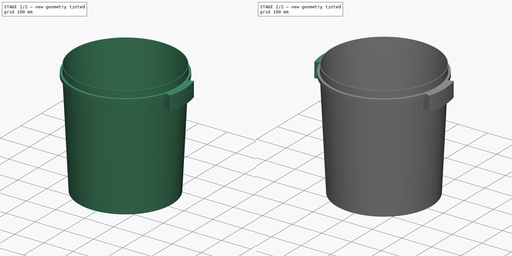
[diagram: build sequence overview — one tinted view per stage of 2, left to right]
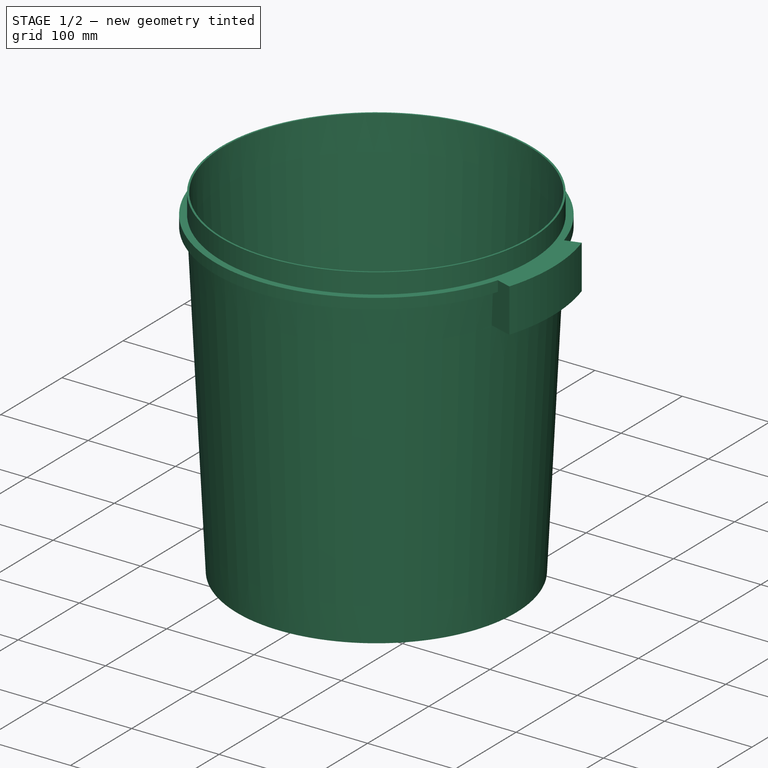
[diagram: stage 1 of 2 — iso view after this stage's code; geometry added in this stage tinted green]
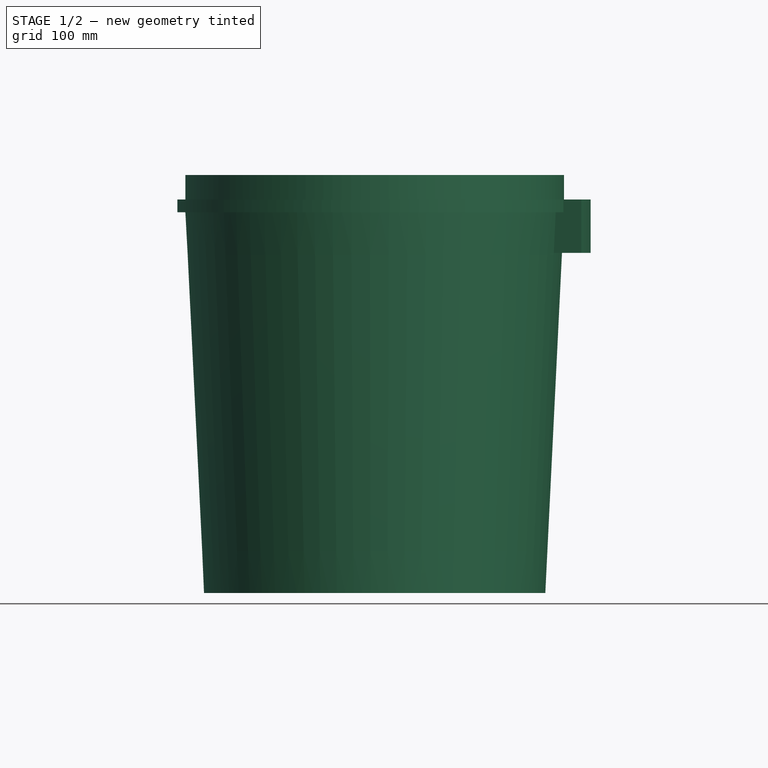
[diagram: stage 1 of 2 — front view after this stage's code; geometry added in this stage tinted green]
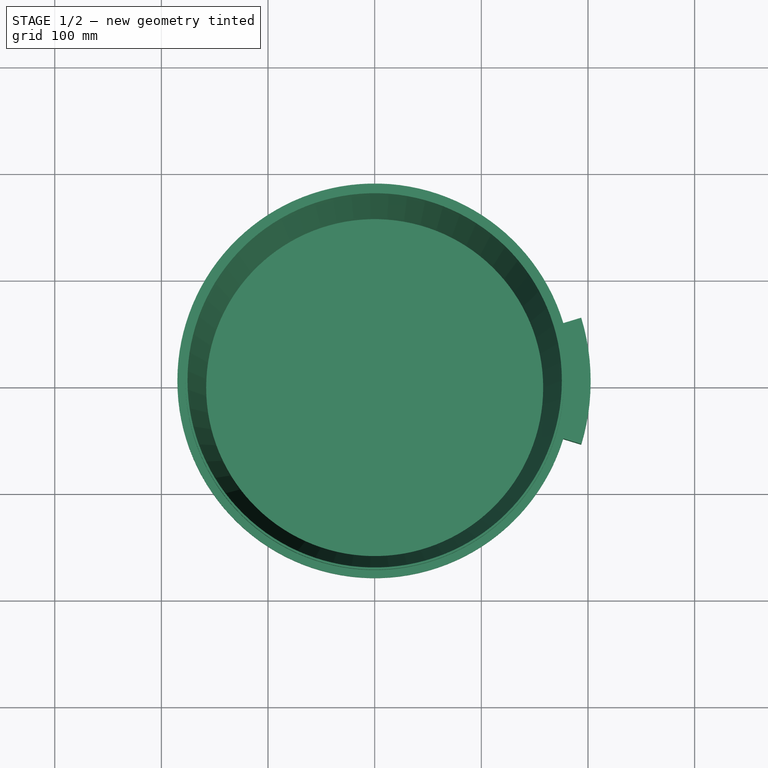
[diagram: stage 1 of 2 — top view after this stage's code; geometry added in this stage tinted green]
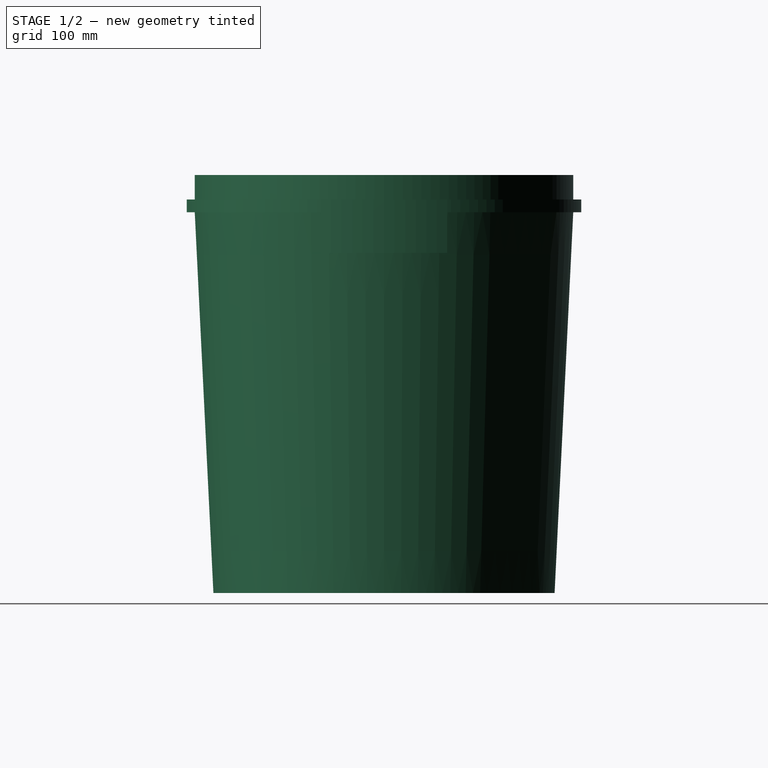
[diagram: stage 1 of 2 — right view after this stage's code; geometry added in this stage tinted green]
FCSTD DOCUMENT  (FreeCAD 1.1R38827 (Git))
Label: basin_big
License: All rights reserved
LicenseURL: http://en.wikipedia.org/wiki/All_rights_reserved
objects: Part::FeaturePython×4, Sketcher::SketchObject×2, PartDesign::Revolution×2, App::AnnotationLabel×2, PartDesign::Mirrored×1, PartDesign::CoordinateSystem×1, PartDesign::Body×1, Spreadsheet::Sheet×1, App::DocumentObjectGroup×1
note: 18 computed .brp shape members not serialized (recipe doc carries the construction recipe); baked Part::Feature solids carry a one-line shape summary decoded from their .brp

FEATURE [Sketcher::SketchObject] Sketch067  label="basin_sketch"
  ArcFitTolerance = 0
  AttachmentSupport = -> [XZ_Plane034]
  FullyConstrained = true
  MakeInternals = false
  MapMode = 5
  Placement = pos=(0,0,0) rot=(1,0,0;1.5708rad)
  sketch-geometry (10):
    g0: LineSegment StartX=0 StartY=0 StartZ=0 EndX=160 EndY=0 EndZ=0
    g1: LineSegment StartX=160 StartY=0 StartZ=0 EndX=177.5 EndY=357 EndZ=0
    g2: LineSegment StartX=177.5 StartY=357 StartZ=0 EndX=185 EndY=357 EndZ=0
    g3: LineSegment StartX=185 StartY=357 StartZ=0 EndX=185 EndY=369 EndZ=0
    g4: LineSegment StartX=185 StartY=369 StartZ=0 EndX=177.5 EndY=369 EndZ=0
    g5: LineSegment StartX=177.5 StartY=369 StartZ=0 EndX=177.5 EndY=392 EndZ=0
    g6: LineSegment StartX=177.5 StartY=392 StartZ=0 EndX=175.5 EndY=392 EndZ=0
    g7: LineSegment StartX=0 StartY=2 StartZ=0 EndX=0 EndY=0 EndZ=0
    g8: LineSegment StartX=175.5 StartY=392 StartZ=0 EndX=158 EndY=2 EndZ=0
    g9: LineSegment StartX=158 StartY=2 StartZ=0 EndX=0 EndY=2 EndZ=0
  constraints (29):
    c: Coincident(g-1,g0)
    c: PointOnObject(g0,g-1)
    c: Coincident(g0,g1)
    c: Coincident(g1,g2)
    c: Horizontal(g2)
    c: Coincident(g2,g3)
    c: Vertical(g3)
    c: Coincident(g3,g4)
    c: Horizontal(g4)
    c: Coincident(g4,g5)
    c: Coincident(g5,g6)
    c: Horizontal(g6)
    c: Coincident(g7,g0)
    c: DistanceX(g0) = 160  'basin_bottom_r'
    c: DistanceX(g1) = 177.5
    c: Vertical(g4,g1)
    c: Vertical(g5,g4)
    c: DistanceX(g2) = 185
    c: DistanceY(g1) = 357
    c: DistanceY(g2,g3) = 12
    c: Coincident(g9,g8)
    c: Horizontal(g9)
    c: DistanceY(g0,g9) = 2
    c: DistanceX(g8,g0) = 2
    c: DistanceX(g8,g5) = 2
    c: Coincident(g6,g8)
    c: DistanceY(g6) = 392
    c: Coincident(g7,g9)
    c: Vertical(g7)
FEATURE [Sketcher::SketchObject] Sketch068
  ArcFitTolerance = 0
  AttachmentSupport = -> [XZ_Plane034]
  FullyConstrained = true
  MakeInternals = false
  MapMode = 5
  Placement = pos=(0,0,0) rot=(1,0,0;1.5708rad)
  expr: Constraints[13] = Sketch067.Constraints.basin_bottom_r
  expr: Constraints[14] = Sketch067.Constraints[14]
  expr: Constraints[17] = Sketch067.Constraints[17]
  expr: Constraints[18] = Sketch067.Constraints[18]
  expr: Constraints[19] = Sketch067.Constraints[19]
  expr: Constraints[22] = Sketch067.Constraints[22]
  expr: Constraints[23] = Sketch067.Constraints[23]
  expr: Constraints[24] = Sketch067.Constraints[24]
  expr: Constraints[26] = Sketch067.Constraints[26]
  sketch-geometry (14):
    g0: LineSegment [constr] StartX=0 StartY=0 StartZ=0 EndX=160 EndY=0 EndZ=0
    g1: LineSegment [constr] StartX=160 StartY=0 StartZ=0 EndX=177.5 EndY=357 EndZ=0
    g2: LineSegment StartX=177.5 StartY=357 StartZ=0 EndX=185 EndY=357 EndZ=0
    g3: LineSegment StartX=185 StartY=357 StartZ=0 EndX=185 EndY=369 EndZ=0
    g4: LineSegment [constr] StartX=185 StartY=369 StartZ=0 EndX=177.5 EndY=369 EndZ=0
    g5: LineSegment [constr] StartX=177.5 StartY=369 StartZ=0 EndX=177.5 EndY=392 EndZ=0
    g6: LineSegment [constr] StartX=177.5 StartY=392 StartZ=0 EndX=175.5 EndY=392 EndZ=0
    g7: LineSegment [constr] StartX=0 StartY=2 StartZ=0 EndX=0 EndY=0 EndZ=0
    g8: LineSegment [constr] StartX=175.5 StartY=392 StartZ=0 EndX=158 EndY=2 EndZ=0
    g9: LineSegment [constr] StartX=158 StartY=2 StartZ=0 EndX=0 EndY=2 EndZ=0
    g10: LineSegment StartX=185 StartY=369 StartZ=0 EndX=202.5 EndY=369 EndZ=0
    g11: LineSegment StartX=202.5 StartY=369 StartZ=0 EndX=202.5 EndY=319 EndZ=0
    g12: LineSegment StartX=202.5 StartY=319 StartZ=0 EndX=175.637 EndY=319 EndZ=0
    g13: LineSegment StartX=175.637 StartY=319 StartZ=0 EndX=177.5 EndY=357 EndZ=0
  constraints (40):
    c: Coincident(g-1,g0)
    c: PointOnObject(g0,g-1)
    c: Coincident(g0,g1)
    c: Coincident(g1,g2)
    c: Horizontal(g2)
    c: Coincident(g2,g3)
    c: Vertical(g3)
    c: Coincident(g3,g4)
    c: Horizontal(g4)
    c: Coincident(g4,g5)
    c: Coincident(g5,g6)
    c: Horizontal(g6)
    c: Coincident(g7,g0)
    c: DistanceX(g0) = 160
    c: DistanceX(g1) = 177.5
    c: Vertical(g4,g1)
    c: Vertical(g5,g4)
    c: DistanceX(g2) = 185
    c: DistanceY(g1) = 357
    c: DistanceY(g2,g3) = 12
    c: Coincident(g9,g8)
    c: Horizontal(g9)
    c: DistanceY(g0,g9) = 2
    c: DistanceX(g8,g0) = 2
    c: DistanceX(g8,g5) = 2
    c: Coincident(g6,g8)
    c: DistanceY(g6) = 392
    c: Coincident(g7,g9)
    c: Vertical(g7)
    c: Coincident(g10,g3)
    c: Horizontal(g10)
    c: Coincident(g11,g10)
    c: Vertical(g11)
    c: Coincident(g12,g11)
    c: PointOnObject(g12,g1)
    c: Horizontal(g12)
    c: Coincident(g13,g12)
    c: Coincident(g13,g2)
    c: DistanceX(g10) = 202.5
    c: DistanceY(g11,g10) = 50
FEATURE [PartDesign::Revolution] Revolution
  Angle = 360
  Angle2 = 60
  Axis = (0,2e-16,1)
  Base = (0,0,0)
  Placement = pos=(0,0,0) rot=(1,0,0;1.5708rad)
  Profile = -> Sketch067
  ReferenceAxis = -> Sketch067 [V_Axis]
  Reversed = true
  Suppressed = false
  Type = 0
FEATURE [PartDesign::Revolution] Revolution001
  Angle = 34
  Angle2 = 60
  Axis = (0,2e-16,1)
  Base = (0,0,0)
  BaseFeature = -> Revolution
  Midplane = true
  Placement = pos=(0,0,0) rot=(1,0,0;1.5708rad)
  Profile = -> Sketch068
  ReferenceAxis = -> Sketch068 [V_Axis]
  Reversed = true
  Suppressed = false
  Type = 0
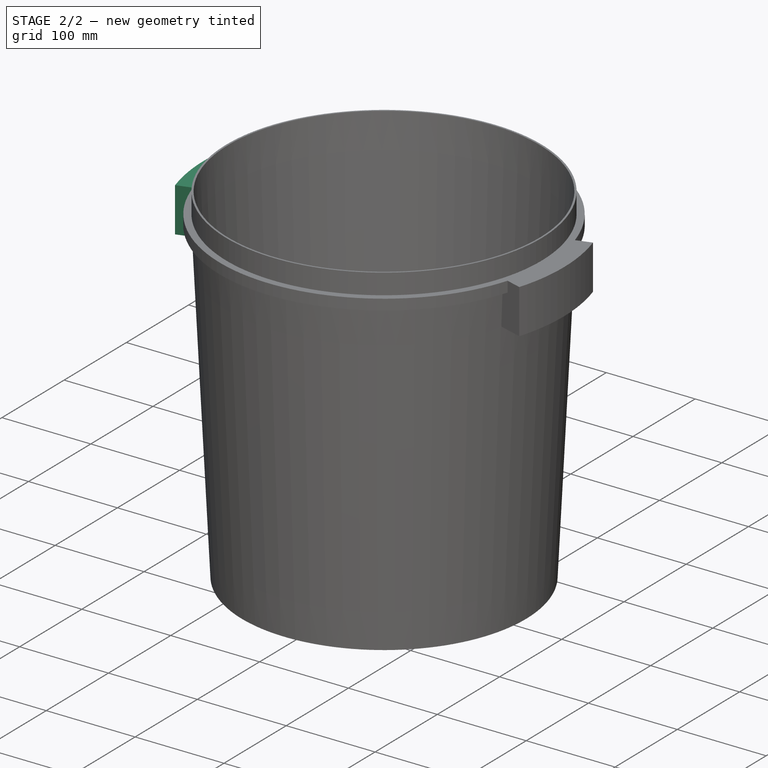
[diagram: stage 2 of 2 — iso view after this stage's code; geometry added in this stage tinted green]
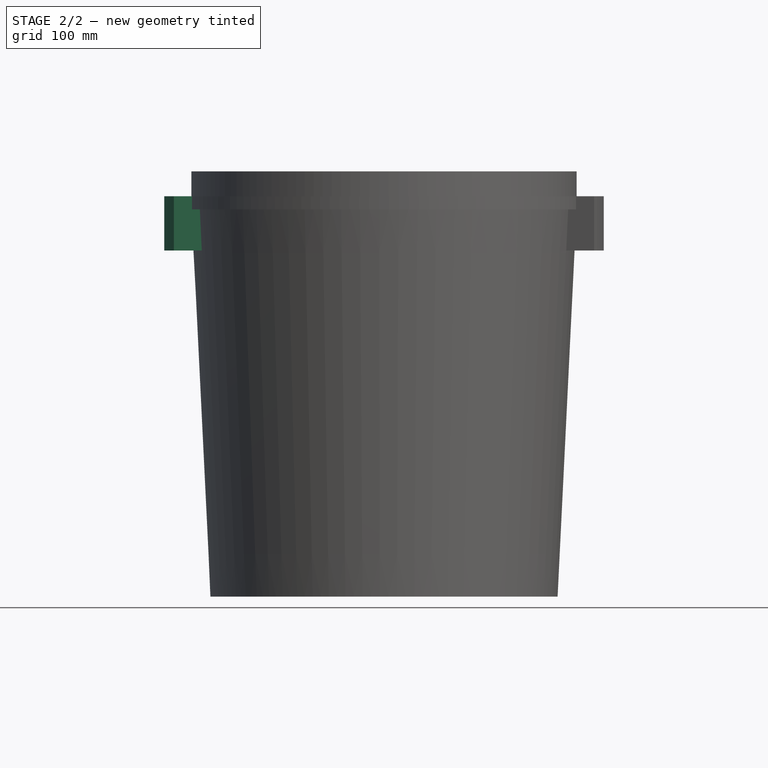
[diagram: stage 2 of 2 — front view after this stage's code; geometry added in this stage tinted green]
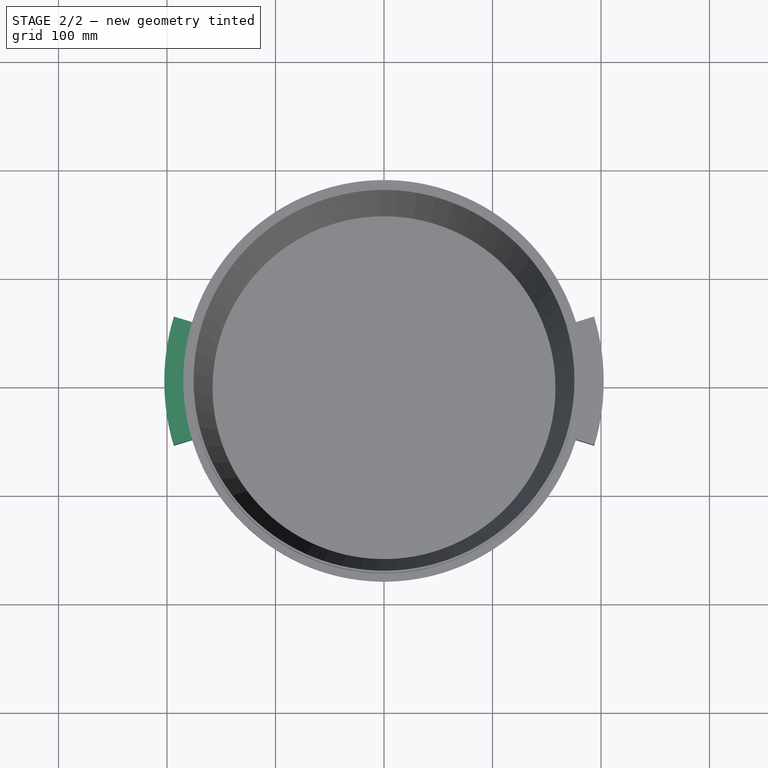
[diagram: stage 2 of 2 — top view after this stage's code; geometry added in this stage tinted green]
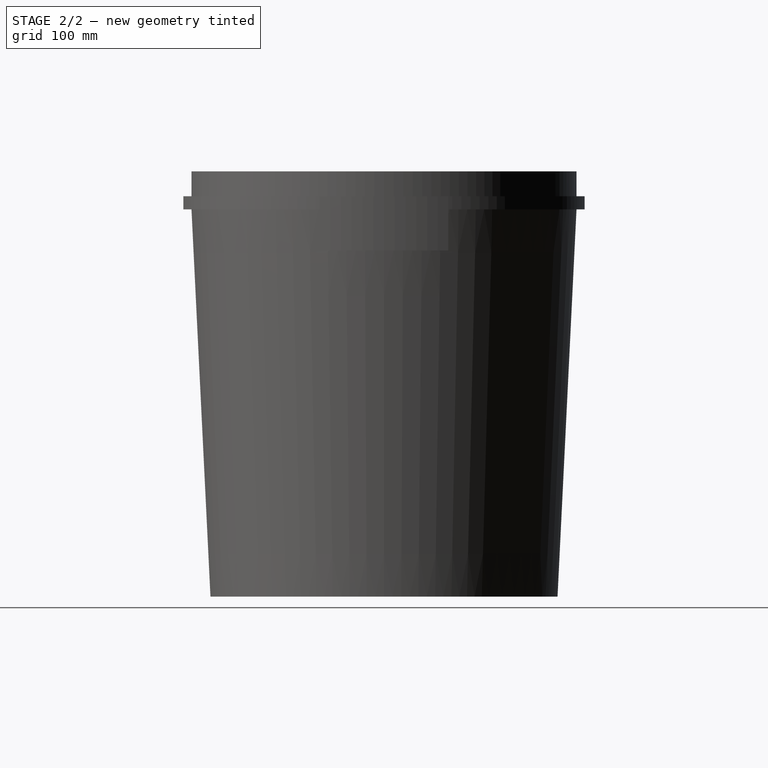
[diagram: stage 2 of 2 — right view after this stage's code; geometry added in this stage tinted green]
FEATURE [PartDesign::Mirrored] Mirrored023
  BaseFeature = -> Revolution001
  MirrorPlane = -> Sketch068 [V_Axis]
  Originals = -> [Revolution001]
  Placement = pos=(0,0,0) rot=(1,0,0;1.5708rad)
  Suppressed = false
  TransformMode = 0
FEATURE [PartDesign::CoordinateSystem] LCS_021  label="base_LCS"
  AttacherType = Attacher::AttachEngine3D
  AttachmentSupport = -> [X_Axis034]
  MapMode = 2
FEATURE [PartDesign::Body] Body_7  label="basin"
  AllowCompound = false
  Group = -> [LCS_021,Sketch067,Revolution,Sketch068,Revolution001,Mirrored023]
  Origin = -> Origin034
  Tip = -> Mirrored023
FEATURE [Spreadsheet::Sheet] Spreadsheet  label="Properties"
  cells = B2(height)==392 mm; C2(bottom_d)==320 mm; D2(max_r)==405 mm
FEATURE [Part::FeaturePython] aCircle  # WARN: FeaturePython — macro-defined, semantics opaque (R4)
FEATURE [Part::FeaturePython] Radius  # WARN: FeaturePython — macro-defined, semantics opaque (R4)
FEATURE [App::AnnotationLabel] MeasureLbl
  BasePosition = (160,0,0)
  LabelText = R = 160.00 mm
  TextPosition = (0,0,0)
FEATURE [Part::FeaturePython] aCircle001  # WARN: FeaturePython — macro-defined, semantics opaque (R4)
FEATURE [Part::FeaturePython] Radius001  # WARN: FeaturePython — macro-defined, semantics opaque (R4)
FEATURE [App::AnnotationLabel] MeasureLbl001
  BasePosition = (193.652,-59.2053,369)
  LabelText = R = 202.50 mm
  TextPosition = (0,0,0)
FEATURE [App::DocumentObjectGroup] Measures
  Group = -> [aCircle,Radius,MeasureLbl,aCircle001,Radius001,MeasureLbl001]
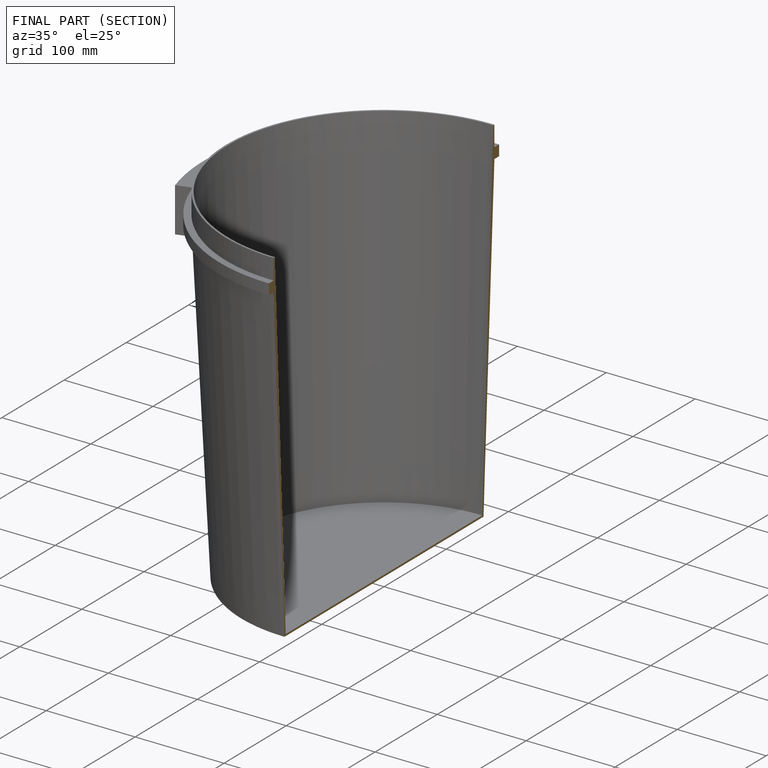
[diagram: finished part — half-section view (interior)]
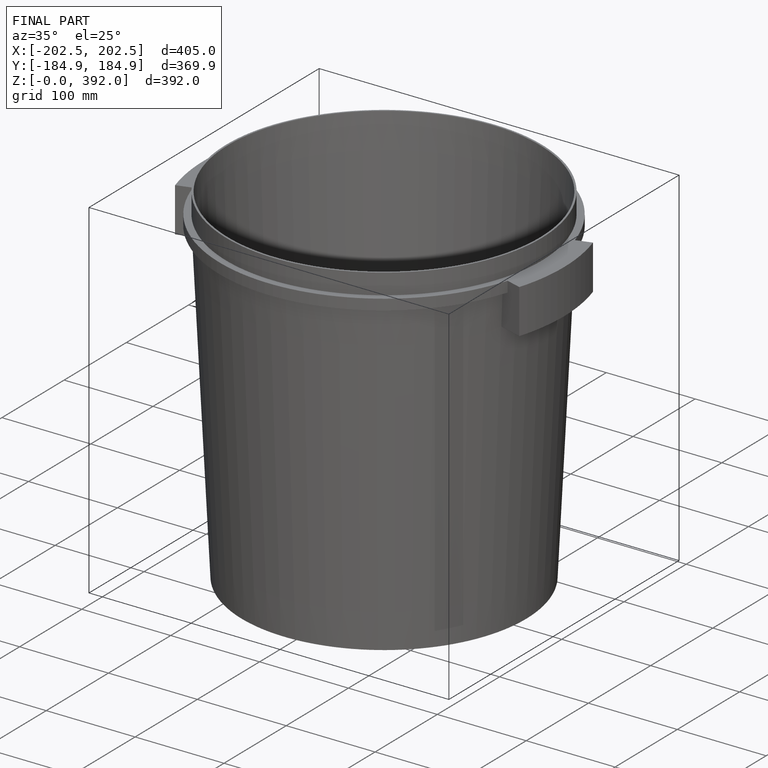
[diagram: finished part — iso view with bounding-box wireframe]
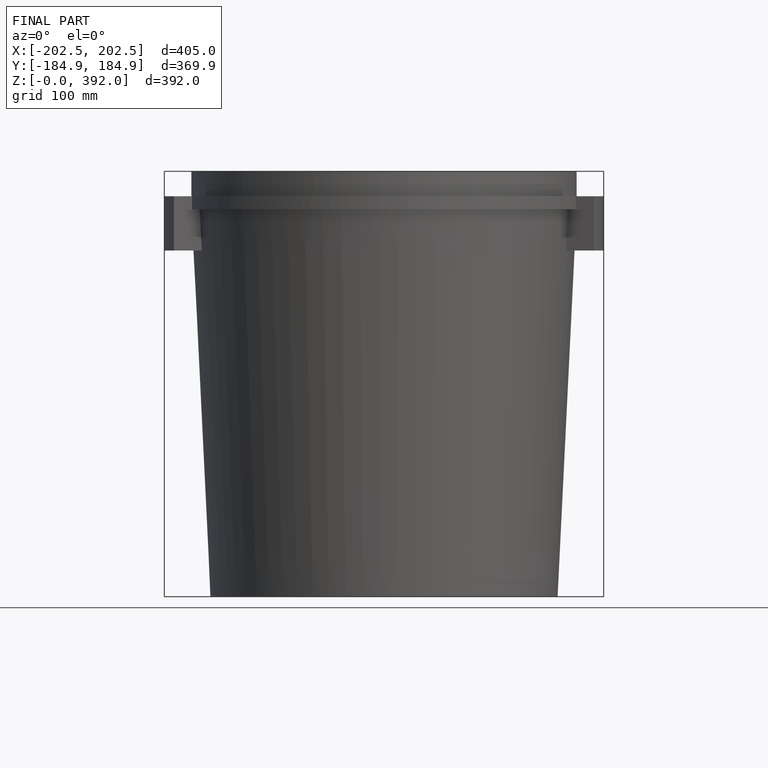
[diagram: finished part — front view with bounding-box wireframe]
